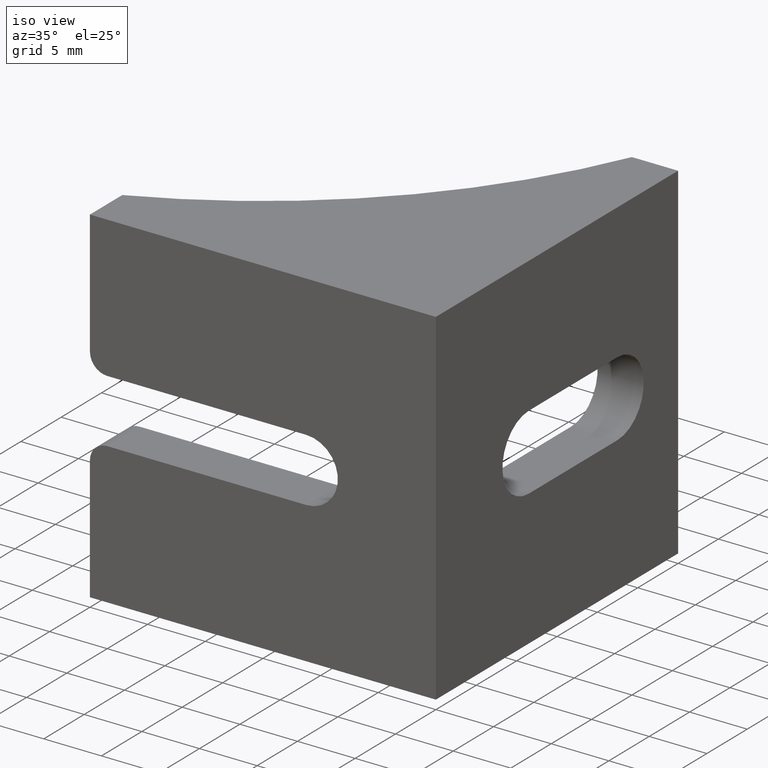
[diagram: clean part render]
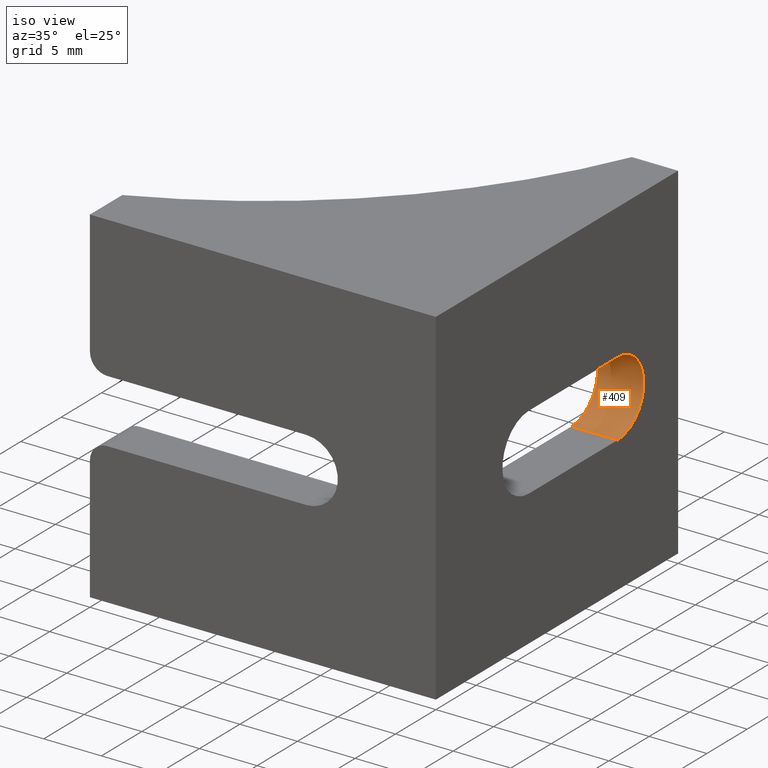
[diagram: same view with one face highlighted and labeled with its STEP entity id]
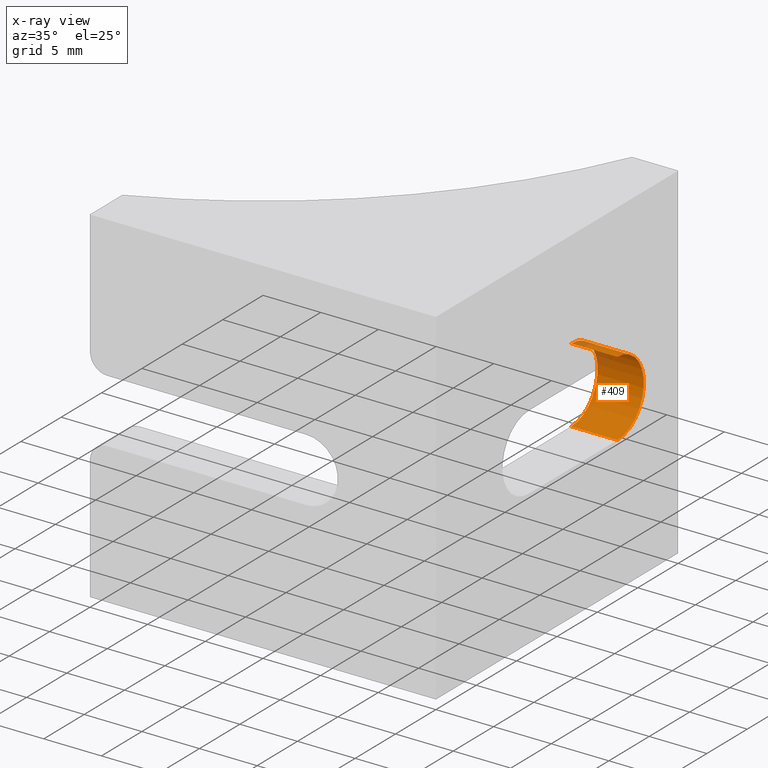
[diagram: x-ray of the same camera — body ghosted, the highlighted face saturated]
A machine part, iso view. The second image highlights one B-rep face of the part: STEP entity #409.
The next image is the same camera in x-ray: the body ghosted, the highlighted face saturated — about 6% of this face is hidden behind the body in this view.
In plain terms, the highlighted cylindrical surface (partial cylindrical patch) has radius 3.25 mm, axis along (-1, 0, 0).
Its self-contained STEP definition (entity closure, byte-faithful):
#44=FACE_OUTER_BOUND('',#64,.T.);
#64=EDGE_LOOP('',(#327,#328,#329,#330));
#99=LINE('',#638,#143);
#105=LINE('',#653,#149);
#143=VECTOR('',#513,4.);
#149=VECTOR('',#527,4.);
#173=CIRCLE('',#443,3.25);
#174=CIRCLE('',#444,3.25);
#199=VERTEX_POINT('',#634);
#201=VERTEX_POINT('',#637);
#205=VERTEX_POINT('',#649);
#206=VERTEX_POINT('',#651);
#245=EDGE_CURVE('',#201,#199,#99,.T.);
#253=EDGE_CURVE('',#206,#205,#105,.T.);
#254=EDGE_CURVE('',#205,#199,#173,.T.);
#255=EDGE_CURVE('',#201,#206,#174,.T.);
#327=ORIENTED_EDGE('',*,*,#254,.F.);
#328=ORIENTED_EDGE('',*,*,#253,.F.);
#329=ORIENTED_EDGE('',*,*,#255,.F.);
#330=ORIENTED_EDGE('',*,*,#245,.T.);
#395=CYLINDRICAL_SURFACE('',#442,3.25);
#409=ADVANCED_FACE('',(#44),#395,.F.);
#442=AXIS2_PLACEMENT_3D('',#654,#528,#529);
#443=AXIS2_PLACEMENT_3D('',#655,#530,#531);
#444=AXIS2_PLACEMENT_3D('',#656,#532,#533);
#513=DIRECTION('',(-1.,0.,0.));
#527=DIRECTION('',(-1.,0.,0.));
#528=DIRECTION('center_axis',(-1.,0.,0.));
#529=DIRECTION('ref_axis',(0.,0.,-1.));
#530=DIRECTION('center_axis',(1.,0.,0.));
#531=DIRECTION('ref_axis',(0.,0.,-1.));
#532=DIRECTION('center_axis',(-1.,0.,0.));
#533=DIRECTION('ref_axis',(0.,0.,-1.));
#634=CARTESIAN_POINT('',(11.,7.5,18.25));
#637=CARTESIAN_POINT('',(15.,7.5,18.25));
#638=CARTESIAN_POINT('',(15.,7.5,18.25));
#649=CARTESIAN_POINT('',(11.,7.5,11.75));
#651=CARTESIAN_POINT('',(15.,7.5,11.75));
#653=CARTESIAN_POINT('',(15.,7.5,11.75));
#654=CARTESIAN_POINT('Origin',(15.,7.5,15.));
#655=CARTESIAN_POINT('Origin',(11.,7.5,15.));
#656=CARTESIAN_POINT('Origin',(15.,7.5,15.));